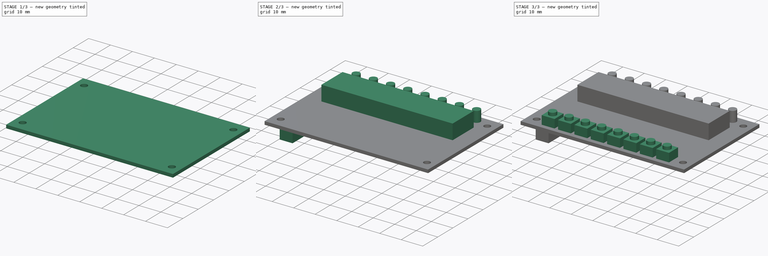
[diagram: build sequence overview — one tinted view per stage of 3, left to right]
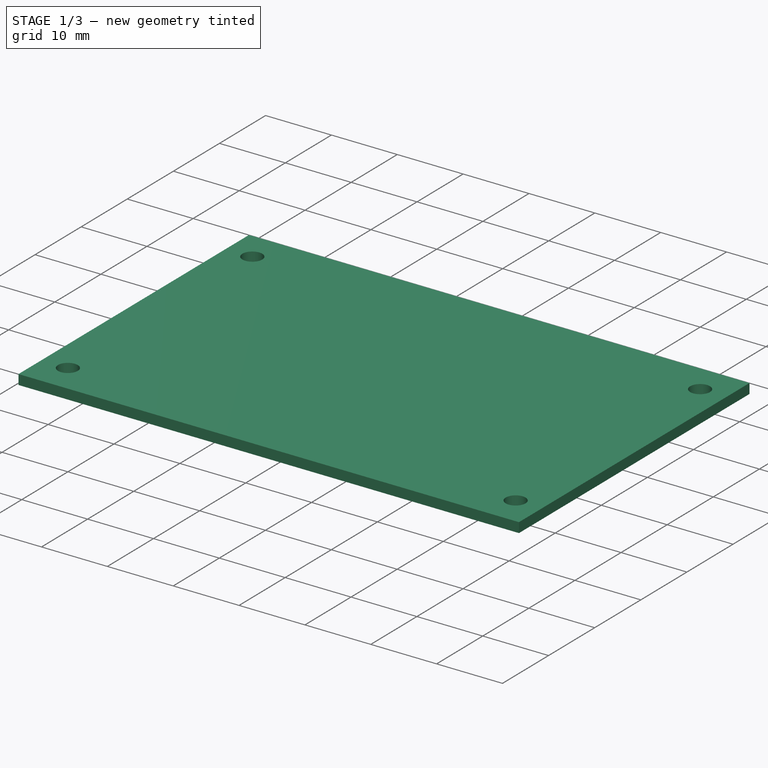
[diagram: stage 1 of 3 — iso view after this stage's code; geometry added in this stage tinted green]
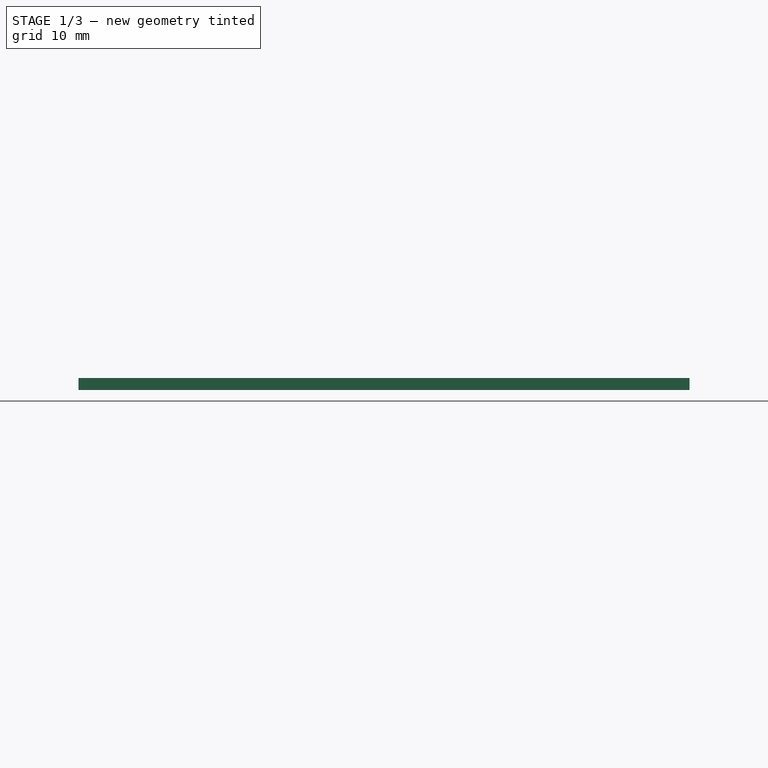
[diagram: stage 1 of 3 — front view after this stage's code; geometry added in this stage tinted green]
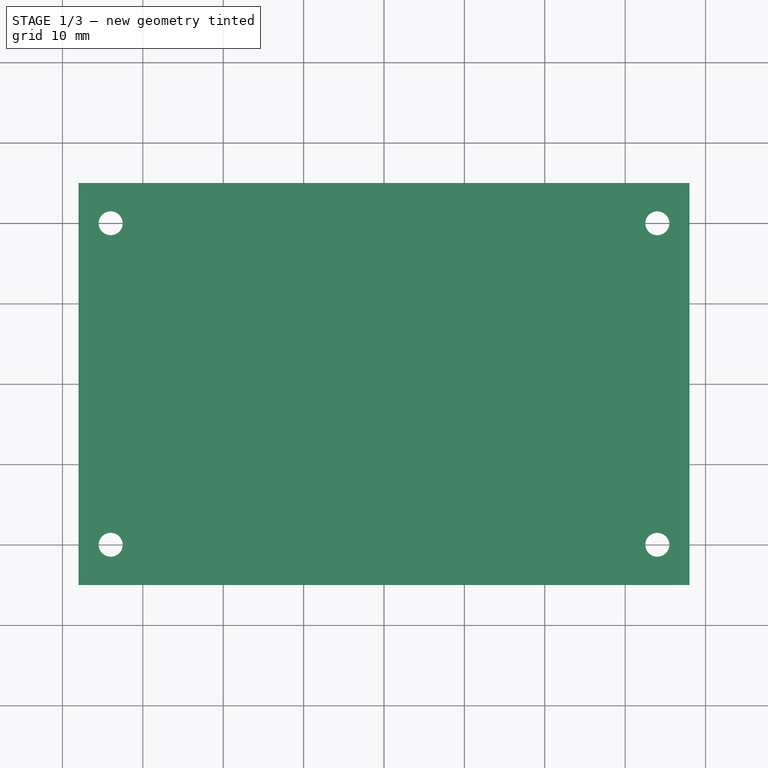
[diagram: stage 1 of 3 — top view after this stage's code; geometry added in this stage tinted green]
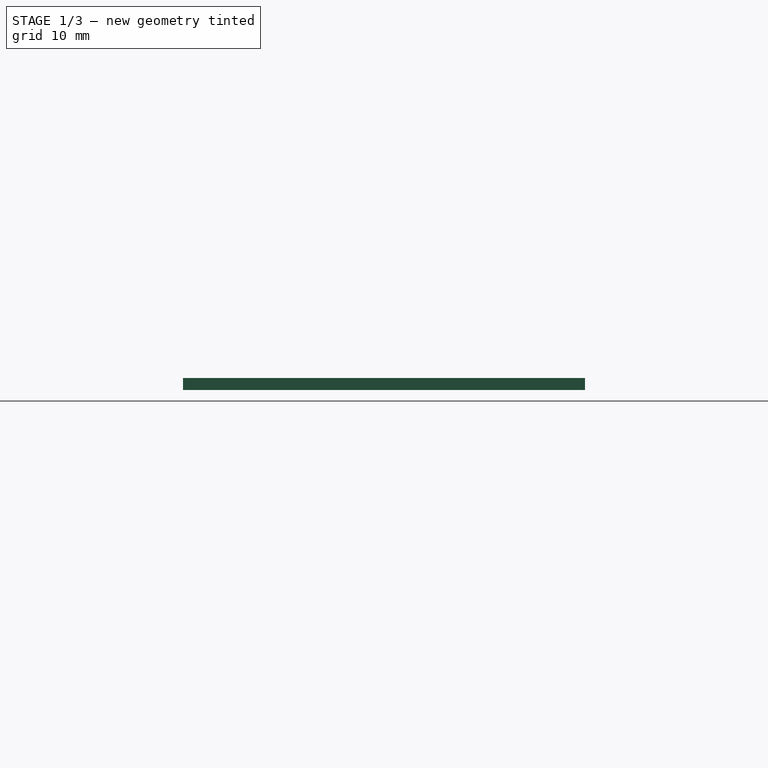
[diagram: stage 1 of 3 — right view after this stage's code; geometry added in this stage tinted green]
FCSTD DOCUMENT  (FreeCAD 0.19R)
Label: indicator
License: All rights reserved
LicenseURL: http://en.wikipedia.org/wiki/All_rights_reserved
objects: Sketcher::SketchObject×7, PartDesign::Pad×6, PartDesign::Pocket×1, PartDesign::CoordinateSystem×1, PartDesign::Body×1
note: 23 computed .brp shape members not serialized (recipe doc carries the construction recipe); baked Part::Feature solids carry a one-line shape summary decoded from their .brp

FEATURE [Sketcher::SketchObject] Sketch
  FullyConstrained = true
  MapMode = 5
  Support = -> [XY_Plane]
  sketch-geometry (4):
    g0: LineSegment StartX=-38 StartY=25 StartZ=0 EndX=38 EndY=25 EndZ=0
    g1: LineSegment StartX=38 StartY=25 StartZ=0 EndX=38 EndY=-25 EndZ=0
    g2: LineSegment StartX=38 StartY=-25 StartZ=0 EndX=-38 EndY=-25 EndZ=0
    g3: LineSegment StartX=-38 StartY=-25 StartZ=0 EndX=-38 EndY=25 EndZ=0
  constraints (10):
    c: Coincident(g0,g1)
    c: Coincident(g1,g2)
    c: Coincident(g2,g3)
    c: Coincident(g3,g0)
    c: Horizontal(g2)
    c: Vertical(g3)
    c: DistanceY(g3,g3) = 50
    c: DistanceX(g0,g0) = 76
    c: Symmetric(g0,g0,g-2)
    c: Symmetric(g1,g0,g-1)
FEATURE [PartDesign::Pad] Pad
  Direction = (1,1,1)
  Length = 1.5
  Length2 = 100
  Profile = -> Sketch
  Type = 0
FEATURE [Sketcher::SketchObject] Sketch001
  FullyConstrained = true
  MapMode = 5
  Placement = pos=(0,0,1.5) rot=(0,0,1;0rad)
  Support = -> [Pad]
  sketch-geometry (4):
    g0: Circle CenterX=-34 CenterY=20 CenterZ=0 NormalX=0 NormalY=0 NormalZ=1 AngleXU=0 Radius=1.5
    g1: Circle CenterX=34 CenterY=20 CenterZ=0 NormalX=0 NormalY=0 NormalZ=1 AngleXU=0 Radius=1.5
    g2: Circle CenterX=-34 CenterY=-20 CenterZ=0 NormalX=0 NormalY=0 NormalZ=1 AngleXU=0 Radius=1.5
    g3: Circle CenterX=34 CenterY=-20 CenterZ=0 NormalX=0 NormalY=0 NormalZ=1 AngleXU=0 Radius=1.5
  constraints (9):
    c: Symmetric(g3,g2,g-2)
    c: Symmetric(g1,g0,g-2)
    c: Symmetric(g1,g3,g-1)
    c: DistanceX(g0,g1) = 68
    c: DistanceY(g3,g1) = 40
    c: Equal(g3,g1)
    c: Equal(g1,g0)
    c: Equal(g0,g2)
    c: Diameter(g3) = 3
FEATURE [PartDesign::Pocket] Pocket
  BaseFeature = -> Pad
  Length = 5
  Length2 = 100
  Profile = -> Sketch001
  Type = 1
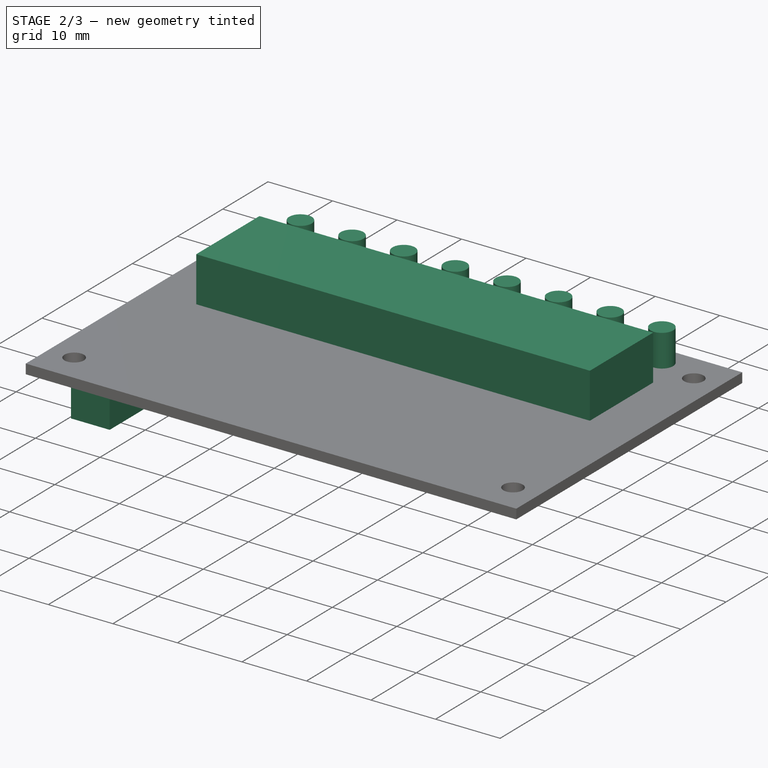
[diagram: stage 2 of 3 — iso view after this stage's code; geometry added in this stage tinted green]
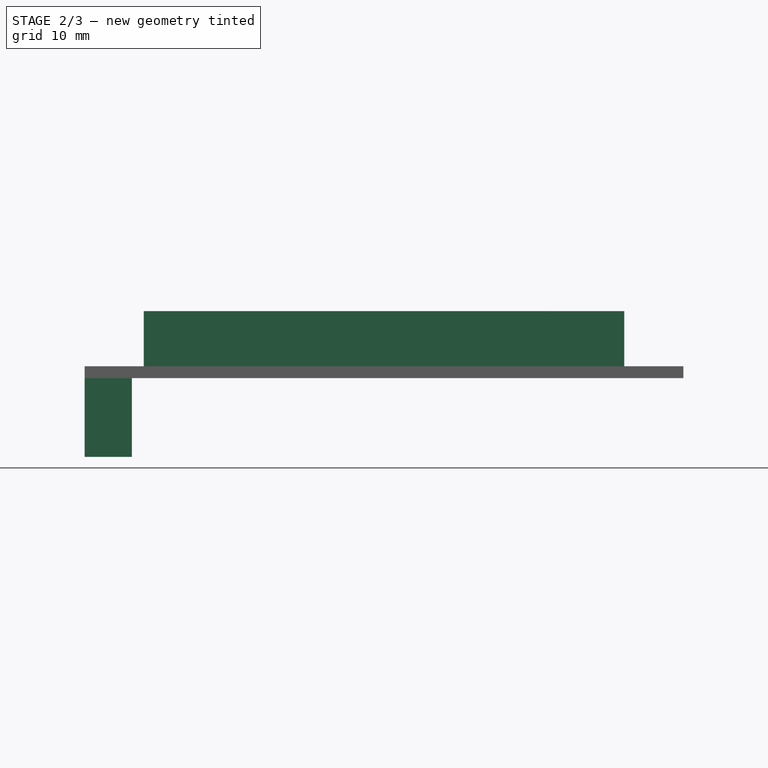
[diagram: stage 2 of 3 — front view after this stage's code; geometry added in this stage tinted green]
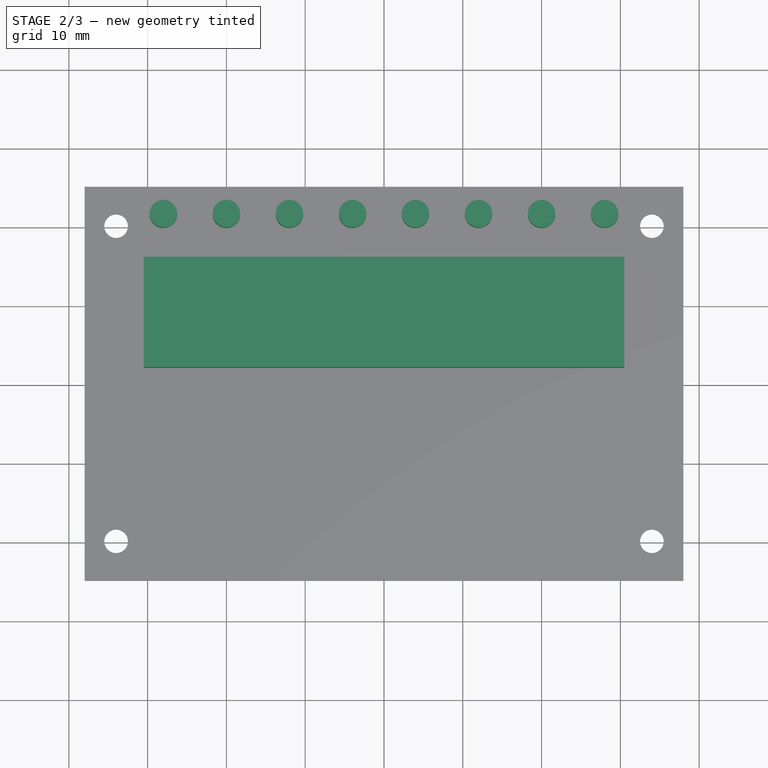
[diagram: stage 2 of 3 — top view after this stage's code; geometry added in this stage tinted green]
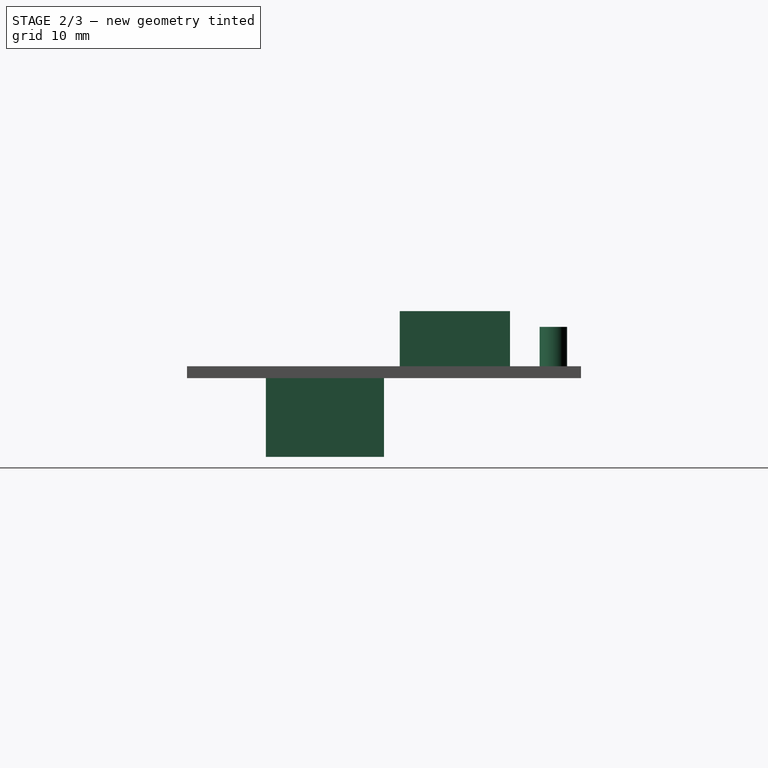
[diagram: stage 2 of 3 — right view after this stage's code; geometry added in this stage tinted green]
FEATURE [Sketcher::SketchObject] Sketch002
  ExternalGeometry = -> [Pocket]
  FullyConstrained = true
  MapMode = 5
  Placement = pos=(0,0,1.5) rot=(0,0,1;0rad)
  Support = -> [Pocket]
  sketch-geometry (8):
    g0: Circle CenterX=-28 CenterY=21.5 CenterZ=0 NormalX=0 NormalY=0 NormalZ=1 AngleXU=0 Radius=1.75
    g1: Circle CenterX=-20 CenterY=21.5 CenterZ=0 NormalX=0 NormalY=0 NormalZ=1 AngleXU=0 Radius=1.75
    g2: Circle CenterX=-12 CenterY=21.5 CenterZ=0 NormalX=0 NormalY=0 NormalZ=1 AngleXU=0 Radius=1.75
    g3: Circle CenterX=-4 CenterY=21.5 CenterZ=0 NormalX=0 NormalY=0 NormalZ=1 AngleXU=0 Radius=1.75
    g4: Circle CenterX=4 CenterY=21.5 CenterZ=0 NormalX=0 NormalY=0 NormalZ=1 AngleXU=0 Radius=1.75
    g5: Circle CenterX=12 CenterY=21.5 CenterZ=0 NormalX=0 NormalY=0 NormalZ=1 AngleXU=0 Radius=1.75
    g6: Circle CenterX=20 CenterY=21.5 CenterZ=0 NormalX=0 NormalY=0 NormalZ=1 AngleXU=0 Radius=1.75
    g7: Circle CenterX=28 CenterY=21.5 CenterZ=0 NormalX=0 NormalY=0 NormalZ=1 AngleXU=0 Radius=1.75
  constraints (23):
    c: Equal(g0,g1)
    c: Equal(g1,g2)
    c: Equal(g2,g3)
    c: Equal(g3,g4)
    c: Equal(g4,g5)
    c: Equal(g5,g6)
    c: Equal(g6,g7)
    c: Diameter(g7) = 3.5
    c: Horizontal(g7,g6)
    c: Horizontal(g6,g5)
    c: Horizontal(g5,g4)
    c: Horizontal(g3,g2)
    c: Horizontal(g2,g1)
    c: Horizontal(g1,g0)
    c: Symmetric(g3,g4,g-2)
    c: DistanceX(g3,g4) = 8
    c: DistanceX(g2,g3) = 8
    c: DistanceX(g1,g2) = 8
    c: DistanceX(g0,g1) = 8
    c: DistanceX(g4,g5) = 8
    c: DistanceX(g5,g6) = 8
    c: DistanceX(g6,g7) = 8
    c: DistanceY(g7,g-3) = 3.5
FEATURE [PartDesign::Pad] Pad001
  BaseFeature = -> Pocket
  Direction = (1,1,1)
  Length = 5
  Length2 = 100
  Profile = -> Sketch002
  Type = 0
FEATURE [Sketcher::SketchObject] Sketch003
  ExternalGeometry = -> [Pad001]
  FullyConstrained = true
  MapMode = 5
  Placement = pos=(0,0,1.5) rot=(0,0,1;0rad)
  Support = -> [Pad001]
  sketch-geometry (4):
    g0: LineSegment StartX=-30.5 StartY=16 StartZ=0 EndX=30.5 EndY=16 EndZ=0
    g1: LineSegment StartX=30.5 StartY=16 StartZ=0 EndX=30.5 EndY=2 EndZ=0
    g2: LineSegment StartX=30.5 StartY=2 StartZ=0 EndX=-30.5 EndY=2 EndZ=0
    g3: LineSegment StartX=-30.5 StartY=2 StartZ=0 EndX=-30.5 EndY=16 EndZ=0
  constraints (11):
    c: Coincident(g0,g1)
    c: Coincident(g1,g2)
    c: Coincident(g2,g3)
    c: Coincident(g3,g0)
    c: Horizontal(g2)
    c: Vertical(g1)
    c: Vertical(g3)
    c: DistanceY(g1,g1) = 14
    c: DistanceX(g0,g0) = 61
    c: Symmetric(g0,g0,g-2)
    c: DistanceY(g0,g-3) = 9
FEATURE [PartDesign::Pad] Pad002
  BaseFeature = -> Pad001
  Direction = (1,1,1)
  Length = 7
  Length2 = 100
  Profile = -> Sketch003
  Type = 0
FEATURE [Sketcher::SketchObject] Sketch004
  ExternalGeometry = -> [Pad002]
  FullyConstrained = true
  MapMode = 5
  Placement = pos=(0,0,0) rot=(1,0,0;3.14159rad)
  Support = -> [Pad002]
  sketch-geometry (4):
    g0: LineSegment StartX=-38 StartY=15 StartZ=0 EndX=-32 EndY=15 EndZ=0
    g1: LineSegment StartX=-32 StartY=15 StartZ=0 EndX=-32 EndY=0 EndZ=0
    g2: LineSegment StartX=-32 StartY=0 StartZ=0 EndX=-38 EndY=0 EndZ=0
    g3: LineSegment StartX=-38 StartY=0 StartZ=0 EndX=-38 EndY=15 EndZ=0
  constraints (12):
    c: Coincident(g0,g1)
    c: Coincident(g1,g2)
    c: Coincident(g2,g3)
    c: Coincident(g3,g0)
    c: Horizontal(g0)
    c: Horizontal(g2)
    c: Vertical(g1)
    c: Vertical(g3)
    c: DistanceX(g0,g0) = 6
    c: DistanceY(g1,g1) = 15
    c: PointOnObject(g0,g-3)
    c: DistanceY(g0,g-3) = 10
FEATURE [PartDesign::Pad] Pad003
  BaseFeature = -> Pad002
  Direction = (1,1,1)
  Length = 10
  Length2 = 100
  Profile = -> Sketch004
  Type = 0
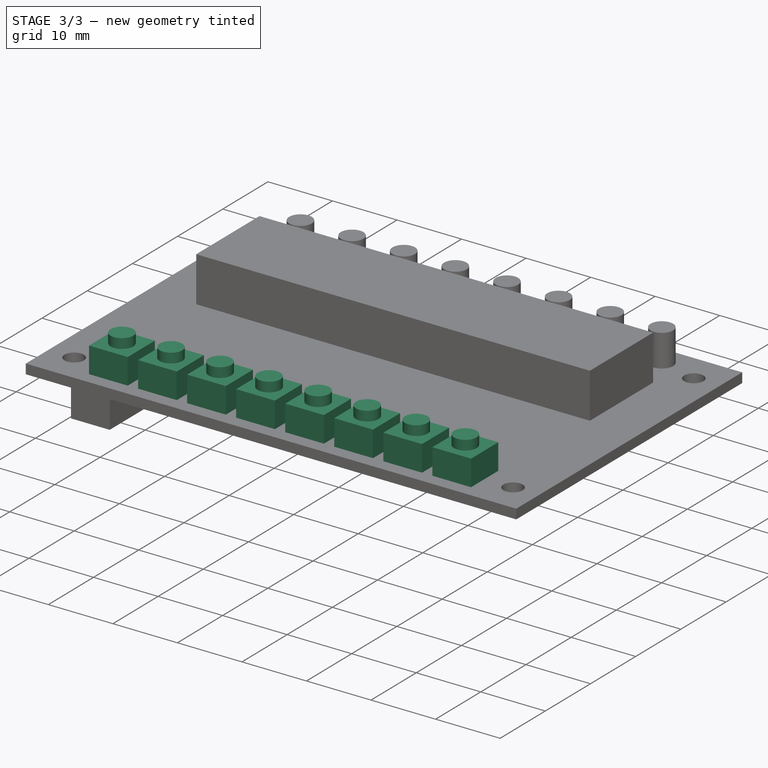
[diagram: stage 3 of 3 — iso view after this stage's code; geometry added in this stage tinted green]
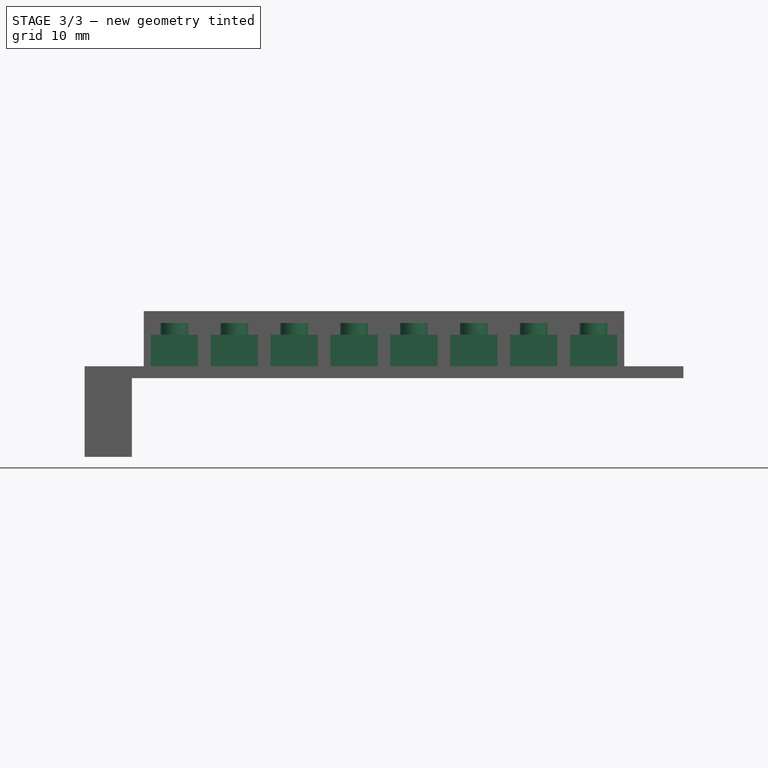
[diagram: stage 3 of 3 — front view after this stage's code; geometry added in this stage tinted green]
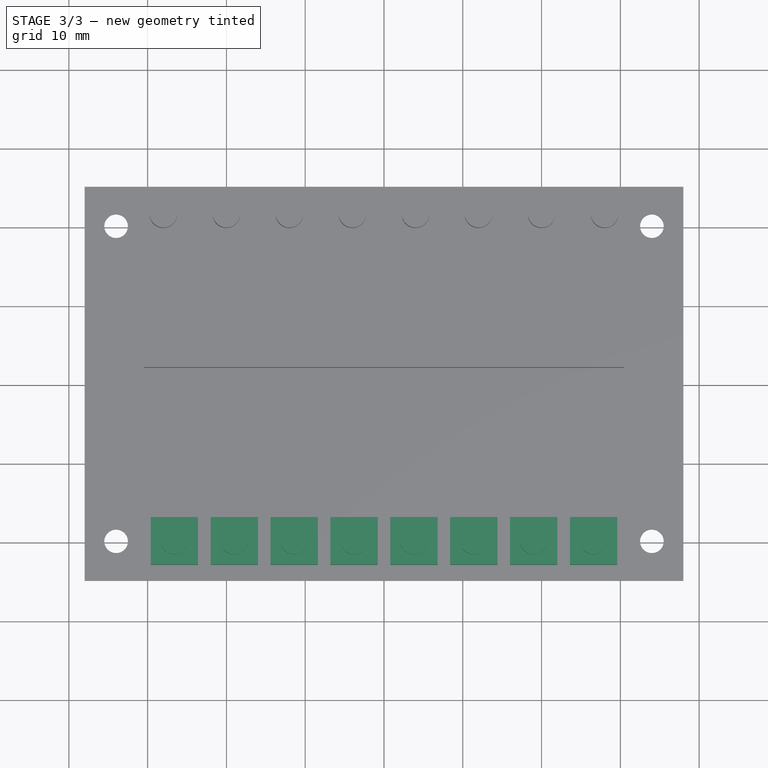
[diagram: stage 3 of 3 — top view after this stage's code; geometry added in this stage tinted green]
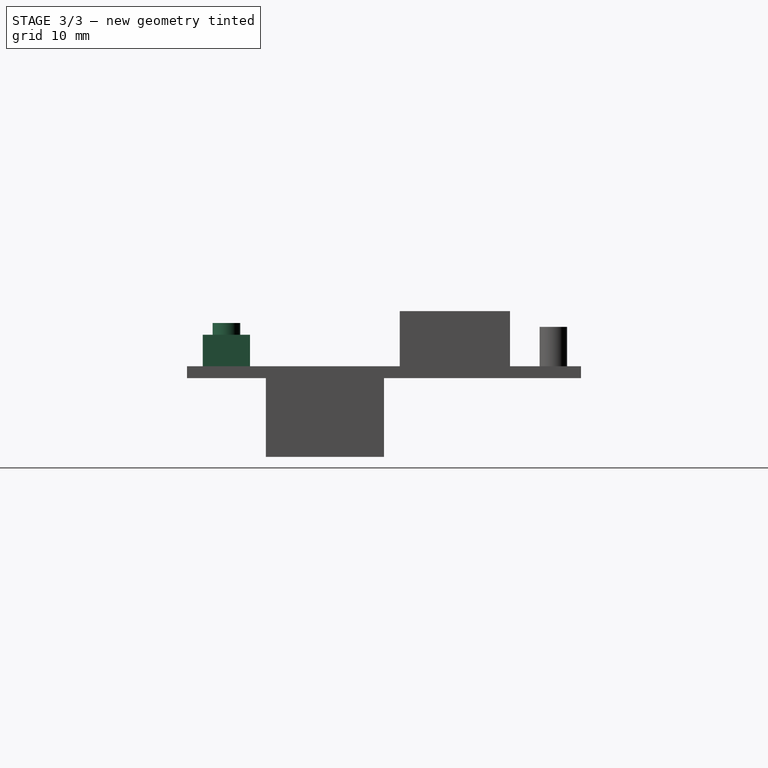
[diagram: stage 3 of 3 — right view after this stage's code; geometry added in this stage tinted green]
FEATURE [Sketcher::SketchObject] Sketch005
  ExternalGeometry = -> [Pad003]
  FullyConstrained = true
  MapMode = 5
  Placement = pos=(0,0,1.5) rot=(0,0,1;0rad)
  Support = -> [Pad003]
  sketch-geometry (39):
    g0: LineSegment StartX=-29.6 StartY=-17 StartZ=0 EndX=-23.6 EndY=-17 EndZ=0
    g1: LineSegment StartX=-23.6 StartY=-17 StartZ=0 EndX=-23.6 EndY=-23 EndZ=0
    g2: LineSegment StartX=-23.6 StartY=-23 StartZ=0 EndX=-29.6 EndY=-23 EndZ=0
    g3: LineSegment StartX=-29.6 StartY=-23 StartZ=0 EndX=-29.6 EndY=-17 EndZ=0
    g4: LineSegment StartX=-22 StartY=-17 StartZ=0 EndX=-16 EndY=-17 EndZ=0
    g5: LineSegment StartX=-16 StartY=-17 StartZ=0 EndX=-16 EndY=-23 EndZ=0
    g6: LineSegment StartX=-16 StartY=-23 StartZ=0 EndX=-22 EndY=-23 EndZ=0
    g7: LineSegment StartX=-22 StartY=-23 StartZ=0 EndX=-22 EndY=-17 EndZ=0
    g8: LineSegment StartX=-29.6 StartY=-17 StartZ=0 EndX=-22 EndY=-17 EndZ=0
    g9: LineSegment StartX=-14.4 StartY=-17 StartZ=0 EndX=-8.4 EndY=-17 EndZ=0
    g10: LineSegment StartX=-8.4 StartY=-17 StartZ=0 EndX=-8.4 EndY=-23 EndZ=0
    g11: LineSegment StartX=-8.4 StartY=-23 StartZ=0 EndX=-14.4 EndY=-23 EndZ=0
    g12: LineSegment StartX=-14.4 StartY=-23 StartZ=0 EndX=-14.4 EndY=-17 EndZ=0
    g13: LineSegment StartX=-22 StartY=-17 StartZ=0 EndX=-14.4 EndY=-17 EndZ=0
    g14: LineSegment StartX=-6.8 StartY=-17 StartZ=0 EndX=-0.8 EndY=-17 EndZ=0
    g15: LineSegment StartX=-0.8 StartY=-17 StartZ=0 EndX=-0.8 EndY=-23 EndZ=0
    g16: LineSegment StartX=-0.8 StartY=-23 StartZ=0 EndX=-6.8 EndY=-23 EndZ=0
    g17: LineSegment StartX=-6.8 StartY=-23 StartZ=0 EndX=-6.8 EndY=-17 EndZ=0
    g18: LineSegment StartX=-14.4 StartY=-17 StartZ=0 EndX=-6.8 EndY=-17 EndZ=0
    g19: LineSegment StartX=0.8 StartY=-17 StartZ=0 EndX=6.8 EndY=-17 EndZ=0
    g20: LineSegment StartX=6.8 StartY=-17 StartZ=0 EndX=6.8 EndY=-23 EndZ=0
    g21: LineSegment StartX=6.8 StartY=-23 StartZ=0 EndX=0.8 EndY=-23 EndZ=0
    g22: LineSegment StartX=0.8 StartY=-23 StartZ=0 EndX=0.8 EndY=-17 EndZ=0
    g23: LineSegment StartX=-6.8 StartY=-17 StartZ=0 EndX=0.8 EndY=-17 EndZ=0
    g24: LineSegment StartX=8.4 StartY=-17 StartZ=0 EndX=14.4 EndY=-17 EndZ=0
    g25: LineSegment StartX=14.4 StartY=-17 StartZ=0 EndX=14.4 EndY=-23 EndZ=0
    g26: LineSegment StartX=14.4 StartY=-23 StartZ=0 EndX=8.4 EndY=-23 EndZ=0
    g27: LineSegment StartX=8.4 StartY=-23 StartZ=0 EndX=8.4 EndY=-17 EndZ=0
    g28: LineSegment StartX=0.8 StartY=-17 StartZ=0 EndX=8.4 EndY=-17 EndZ=0
    g29: LineSegment StartX=16 StartY=-17 StartZ=0 EndX=22 EndY=-17 EndZ=0
    g30: LineSegment StartX=22 StartY=-17 StartZ=0 EndX=22 EndY=-23 EndZ=0
    g31: LineSegment StartX=22 StartY=-23 StartZ=0 EndX=16 EndY=-23 EndZ=0
    g32: LineSegment StartX=16 StartY=-23 StartZ=0 EndX=16 EndY=-17 EndZ=0
    g33: LineSegment StartX=8.4 StartY=-17 StartZ=0 EndX=16 EndY=-17 EndZ=0
    g34: LineSegment StartX=23.6 StartY=-17 StartZ=0 EndX=29.6 EndY=-17 EndZ=0
    g35: LineSegment StartX=29.6 StartY=-17 StartZ=0 EndX=29.6 EndY=-23 EndZ=0
    g36: LineSegment StartX=29.6 StartY=-23 StartZ=0 EndX=23.6 EndY=-23 EndZ=0
    g37: LineSegment StartX=23.6 StartY=-23 StartZ=0 EndX=23.6 EndY=-17 EndZ=0
    g38: LineSegment StartX=16 StartY=-17 StartZ=0 EndX=23.6 EndY=-17 EndZ=0
  constraints (109):
    c: Coincident(g0,g1)
    c: Coincident(g1,g2)
    c: Coincident(g2,g3)
    c: Coincident(g3,g0)
    c: Horizontal(g0)
    c: Horizontal(g2)
    c: Vertical(g1)
    c: Vertical(g3)
    c: DistanceX(g0,g0) = 6
    c: DistanceY(g1,g1) = 6
    c: Coincident(g4,g5)
    c: Coincident(g5,g6)
    c: Coincident(g6,g7)
    c: Coincident(g7,g4)
    c: Horizontal(g4)
    c: Horizontal(g6)
    c: Vertical(g5)
    c: Vertical(g7)
    c: DistanceX(g4,g4) = 6
    c: DistanceY(g5,g5) = 6
    c: Coincident(g0,g8)
    c: Coincident(g4,g8)
    c: Distance(g8) = 7.6
    c: Angle(g8) = 0
    c: Coincident(g9,g10)
    c: Coincident(g10,g11)
    c: Coincident(g11,g12)
    c: Coincident(g12,g9)
    c: Horizontal(g9)
    c: Horizontal(g11)
    c: Vertical(g10)
    c: Vertical(g12)
    c: DistanceX(g9,g9) = 6
    c: DistanceY(g10,g10) = 6
    c: Coincident(g4,g13)
    c: Coincident(g9,g13)
    c: Equal(g8,g13)
    c: Parallel(g13,g8)
    c: Coincident(g14,g15)
    c: Coincident(g15,g16)
    c: Coincident(g16,g17)
    c: Coincident(g17,g14)
    c: Horizontal(g14)
    c: Horizontal(g16)
    c: Vertical(g15)
    c: Vertical(g17)
    c: DistanceX(g14,g14) = 6
    c: DistanceY(g15,g15) = 6
    c: Coincident(g9,g18)
    c: Coincident(g14,g18)
    c: Equal(g8,g18)
    c: Parallel(g18,g8)
    c: Coincident(g19,g20)
    c: Coincident(g20,g21)
    c: Coincident(g21,g22)
    c: Coincident(g22,g19)
    c: Horizontal(g19)
    c: Horizontal(g21)
    c: Vertical(g20)
    c: Vertical(g22)
    c: DistanceX(g19,g19) = 6
    c: DistanceY(g20,g20) = 6
    c: Coincident(g14,g23)
    c: Coincident(g19,g23)
    c: Equal(g8,g23)
    c: Coincident(g24,g25)
    c: Coincident(g25,g26)
    c: Coincident(g26,g27)
    c: Coincident(g27,g24)
    c: Horizontal(g24)
    c: Horizontal(g26)
    c: Vertical(g25)
    c: Vertical(g27)
    c: DistanceX(g24,g24) = 6
    c: DistanceY(g25,g25) = 6
    c: Coincident(g19,g28)
    c: Coincident(g24,g28)
    c: Equal(g8,g28)
    c: Parallel(g28,g8)
    c: Coincident(g29,g30)
    c: Coincident(g30,g31)
    c: Coincident(g31,g32)
    c: Coincident(g32,g29)
    c: Horizontal(g29)
    c: Horizontal(g31)
    c: Vertical(g30)
    c: Vertical(g32)
    c: DistanceX(g29,g29) = 6
    c: DistanceY(g30,g30) = 6
    c: Coincident(g24,g33)
    c: Coincident(g29,g33)
    c: Equal(g8,g33)
    c: Parallel(g33,g8)
    c: Coincident(g34,g35)
    c: Coincident(g35,g36)
    c: Coincident(g36,g37)
    c: Coincident(g37,g34)
    c: Horizontal(g34)
    c: Horizontal(g36)
    c: Vertical(g35)
    c: Vertical(g37)
    c: DistanceX(g34,g34) = 6
    c: DistanceY(g35,g35) = 6
    c: Coincident(g29,g38)
    c: Coincident(g34,g38)
    c: Equal(g8,g38)
    c: Parallel(g38,g8)
    c: Symmetric(g15,g21,g-2)
    c: DistanceY(g-3,g2) = 2
FEATURE [PartDesign::Pad] Pad004
  BaseFeature = -> Pad003
  Direction = (1,1,1)
  Length = 4
  Length2 = 100
  Profile = -> Sketch005
  Type = 0
FEATURE [Sketcher::SketchObject] Sketch006
  ExternalGeometry = -> [Pad004]
  FullyConstrained = true
  MapMode = 5
  Placement = pos=(0,0,5.5) rot=(0,0,1;0rad)
  Support = -> [Pad004]
  sketch-geometry (15):
    g0: Circle CenterX=-26.6 CenterY=-20 CenterZ=0 NormalX=0 NormalY=0 NormalZ=1 AngleXU=0 Radius=1.75
    g1: Circle CenterX=-19 CenterY=-20 CenterZ=0 NormalX=0 NormalY=0 NormalZ=1 AngleXU=0 Radius=1.75
    g2: LineSegment StartX=-26.6 StartY=-20 StartZ=0 EndX=-19 EndY=-20 EndZ=0
    g3: Circle CenterX=-11.4 CenterY=-20 CenterZ=0 NormalX=0 NormalY=0 NormalZ=1 AngleXU=0 Radius=1.75
    g4: LineSegment StartX=-19 StartY=-20 StartZ=0 EndX=-11.4 EndY=-20 EndZ=0
    g5: Circle CenterX=-3.8 CenterY=-20 CenterZ=0 NormalX=0 NormalY=0 NormalZ=1 AngleXU=0 Radius=1.75
    g6: LineSegment StartX=-11.4 StartY=-20 StartZ=0 EndX=-3.8 EndY=-20 EndZ=0
    g7: Circle CenterX=3.8 CenterY=-20 CenterZ=0 NormalX=0 NormalY=0 NormalZ=1 AngleXU=0 Radius=1.75
    g8: LineSegment StartX=-3.8 StartY=-20 StartZ=0 EndX=3.8 EndY=-20 EndZ=0
    g9: Circle CenterX=11.4 CenterY=-20 CenterZ=0 NormalX=0 NormalY=0 NormalZ=1 AngleXU=0 Radius=1.75
    g10: LineSegment StartX=3.8 StartY=-20 StartZ=0 EndX=11.4 EndY=-20 EndZ=0
    g11: Circle CenterX=19 CenterY=-20 CenterZ=0 NormalX=0 NormalY=0 NormalZ=1 AngleXU=0 Radius=1.75
    g12: LineSegment StartX=11.4 StartY=-20 StartZ=0 EndX=19 EndY=-20 EndZ=0
    g13: Circle CenterX=26.6 CenterY=-20 CenterZ=0 NormalX=0 NormalY=0 NormalZ=1 AngleXU=0 Radius=1.75
    g14: LineSegment StartX=19 StartY=-20 StartZ=0 EndX=26.6 EndY=-20 EndZ=0
  constraints (38):
    c: DistanceX(g-4,g0) = 3
    c: DistanceY(g-3,g0) = 3
    c: Diameter(g0) = 3.5
    c: Diameter(g1) = 3.5
    c: Coincident(g0,g2)
    c: Coincident(g1,g2)
    c: Distance(g2) = 7.6
    c: Angle(g2) = 0
    c: Diameter(g3) = 3.5
    c: Coincident(g1,g4)
    c: Coincident(g3,g4)
    c: Equal(g2,g4)
    c: Parallel(g4,g2)
    c: Diameter(g5) = 3.5
    c: Coincident(g3,g6)
    c: Coincident(g5,g6)
    c: Equal(g2,g6)
    c: Parallel(g6,g2)
    c: Diameter(g7) = 3.5
    c: Coincident(g5,g8)
    c: Coincident(g7,g8)
    c: Equal(g2,g8)
    c: Parallel(g8,g2)
    c: Diameter(g9) = 3.5
    c: Coincident(g7,g10)
    c: Coincident(g9,g10)
    c: Equal(g2,g10)
    c: Parallel(g10,g2)
    c: Diameter(g11) = 3.5
    c: Coincident(g9,g12)
    c: Coincident(g11,g12)
    c: Equal(g2,g12)
    c: Parallel(g12,g2)
    c: Diameter(g13) = 3.5
    c: Coincident(g11,g14)
    c: Coincident(g13,g14)
    c: Equal(g2,g14)
    c: Parallel(g14,g2)
FEATURE [PartDesign::Pad] Pad005
  BaseFeature = -> Pad004
  Direction = (1,1,1)
  Length = 1.5
  Length2 = 100
  Profile = -> Sketch006
  Type = 0
FEATURE [PartDesign::CoordinateSystem] LCS_1
  AttacherType = Attacher::AttachEngine3D
  MapMode = 11
  Placement = pos=(-34,20,1.5) rot=(0,0,1;1.5708rad)
  Support = -> [Pad005]
FEATURE [PartDesign::Body] Body
  Group = -> [Sketch,Pad,Sketch001,Pocket,Sketch002,Pad001,Sketch003,Pad002,Sketch004,Pad003,Sketch005,Pad004,Sketch006,Pad005,LCS_1]
  Origin = -> Origin
  Tip = -> Pad005
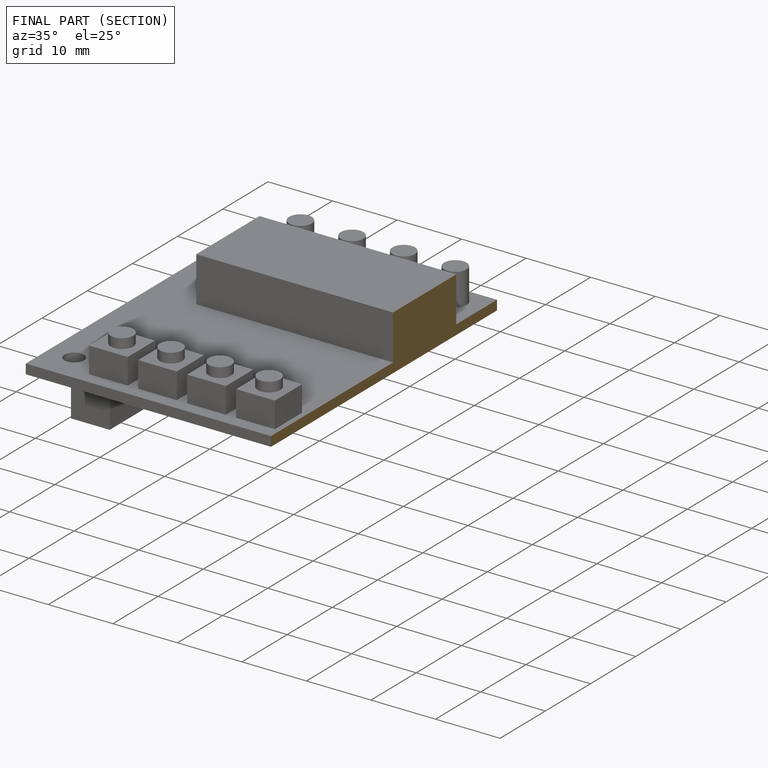
[diagram: finished part — half-section view (interior)]
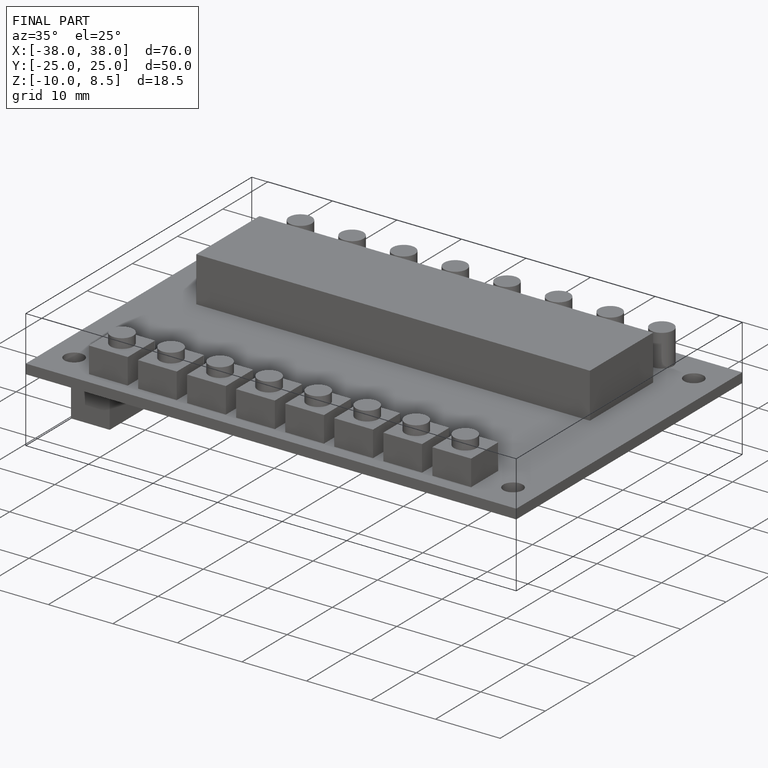
[diagram: finished part — iso view with bounding-box wireframe]
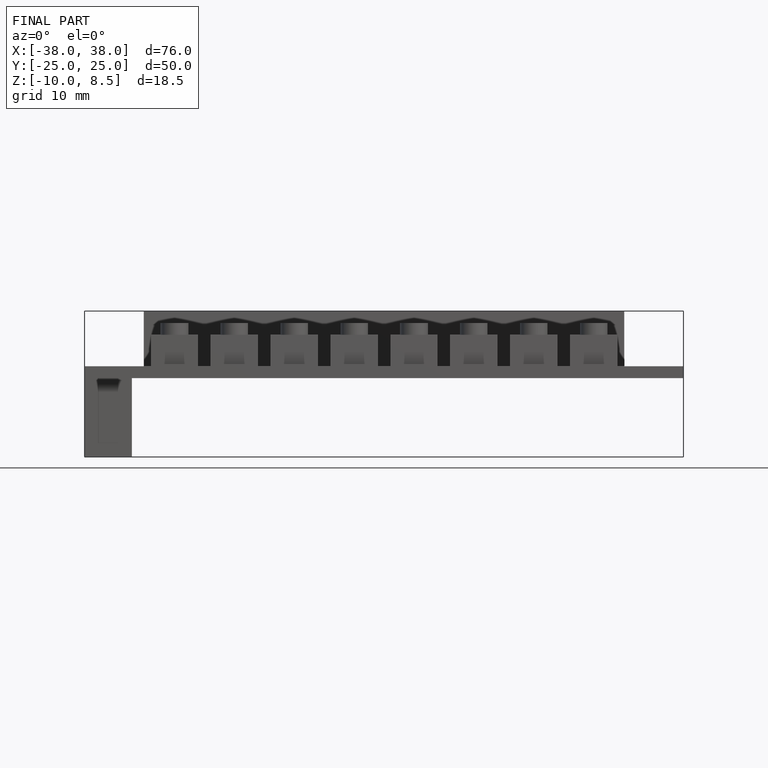
[diagram: finished part — front view with bounding-box wireframe]
